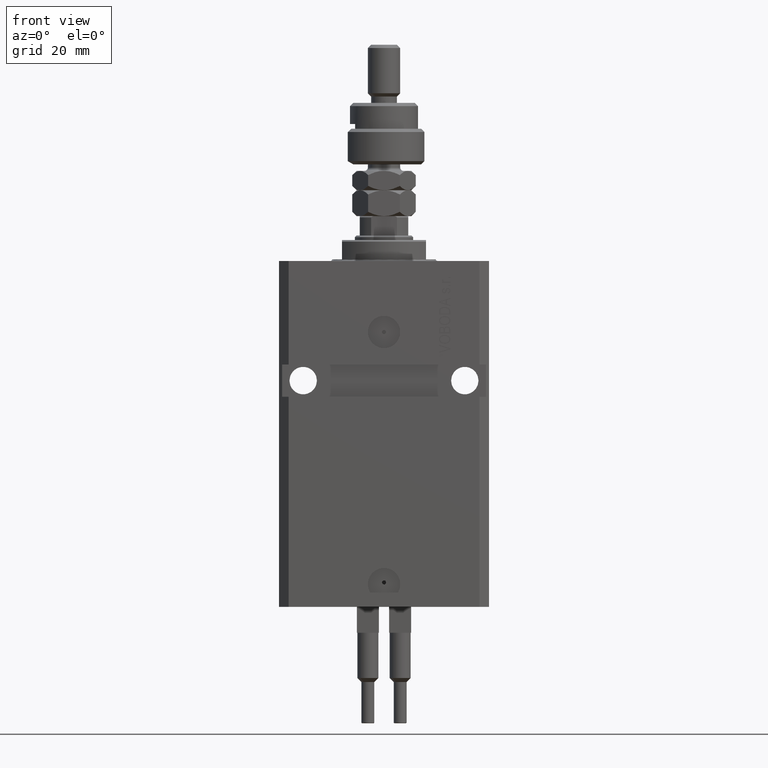
[diagram: clean part render]
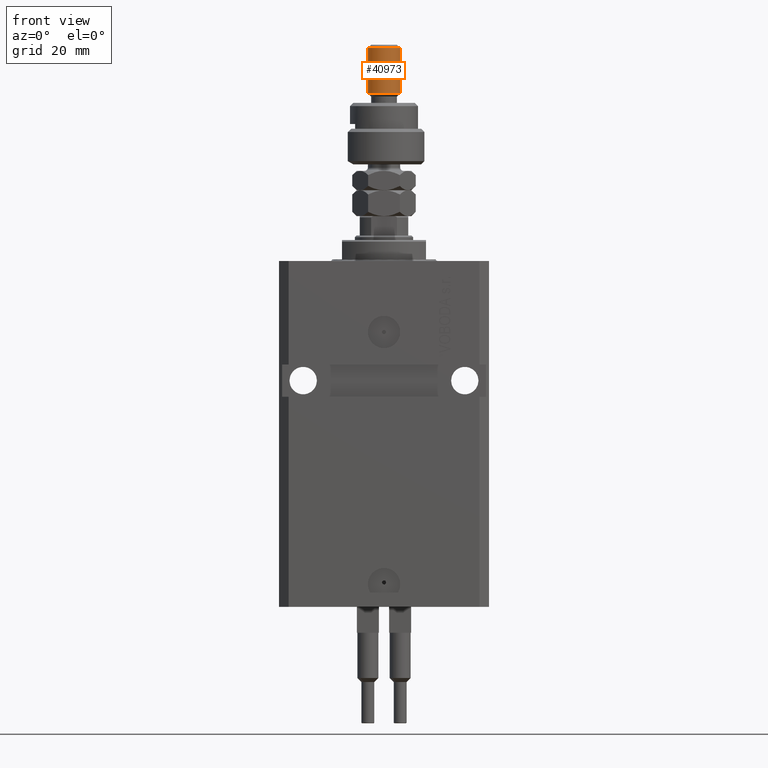
[diagram: same view with one face highlighted and labeled with its STEP entity id]
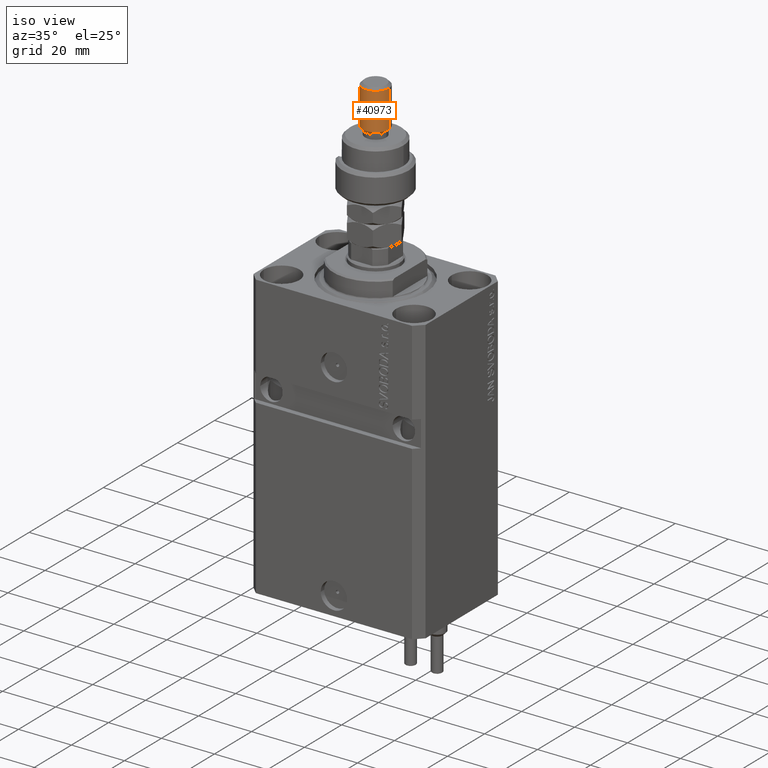
[diagram: same view with one face highlighted and labeled with its STEP entity id]
A machine part, front view. The second image highlights one B-rep face of the part: STEP entity #40973.
A second angle (iso view) of the same face is appended — the face is thin or edge-on in the first view.
In plain terms, the highlighted cylindrical surface (edge-blend (fillet) strip) has radius 5 mm, axis along (-0, -0, -1).
Its self-contained STEP definition (entity closure, byte-faithful):
#910 = AXIS2_PLACEMENT_3D ( 'NONE', #31035, #4340, #43387 ) ;
#1190 = ORIENTED_EDGE ( 'NONE', *, *, #7911, .T. ) ;
#1362 = VECTOR ( 'NONE', #2164, 1000.000000000000000 ) ;
#2164 = DIRECTION ( 'NONE',  ( -0.000000000000000000, -0.000000000000000000, -1.000000000000000000 ) ) ;
#2748 = CARTESIAN_POINT ( 'NONE',  ( 5.000000000000000888, 6.123233995736767268E-16, 36.00000000000000711 ) ) ;
#3967 = EDGE_CURVE ( 'NONE', #25389, #4154, #38803, .T. ) ;
#4154 = VERTEX_POINT ( 'NONE', #16913 ) ;
#4200 = CIRCLE ( 'NONE', #910, 5.000000000000000888 ) ;
#4340 = DIRECTION ( 'NONE',  ( -0.000000000000000000, -0.000000000000000000, 1.000000000000000000 ) ) ;
#4945 = CARTESIAN_POINT ( 'NONE',  ( -5.000000000000000888, 0.000000000000000000, 36.00000000000000711 ) ) ;
#5798 = VERTEX_POINT ( 'NONE', #2748 ) ;
#5976 = CYLINDRICAL_SURFACE ( 'NONE', #38936, 5.000000000000000888 ) ;
#7213 = DIRECTION ( 'NONE',  ( -0.000000000000000000, -0.000000000000000000, -1.000000000000000000 ) ) ;
#7911 = EDGE_CURVE ( 'NONE', #5798, #25389, #30260, .T. ) ;
#9104 = LINE ( 'NONE', #25020, #1362 ) ;
#9162 = CARTESIAN_POINT ( 'NONE',  ( 5.000000000000000888, 6.123233995736767268E-16, 21.99999999999999289 ) ) ;
#9826 = DIRECTION ( 'NONE',  ( -0.000000000000000000, -0.000000000000000000, -1.000000000000000000 ) ) ;
#12225 = EDGE_CURVE ( 'NONE', #4154, #28404, #4200, .T. ) ;
#12764 = ORIENTED_EDGE ( 'NONE', *, *, #12225, .T. ) ;
#15876 = EDGE_LOOP ( 'NONE', ( #16829, #1190, #16847, #12764 ) ) ;
#16829 = ORIENTED_EDGE ( 'NONE', *, *, #44391, .F. ) ;
#16847 = ORIENTED_EDGE ( 'NONE', *, *, #3967, .T. ) ;
#16913 = CARTESIAN_POINT ( 'NONE',  ( -5.000000000000000888, 0.000000000000000000, 21.99999999999999289 ) ) ;
#18276 = FACE_OUTER_BOUND ( 'NONE', #15876, .T. ) ;
#20364 = CARTESIAN_POINT ( 'NONE',  ( 0.000000000000000000, 0.000000000000000000, 36.00000000000000711 ) ) ;
#24728 = DIRECTION ( 'NONE',  ( 0.000000000000000000, 0.000000000000000000, -1.000000000000000000 ) ) ;
#25020 = CARTESIAN_POINT ( 'NONE',  ( 5.000000000000000888, 6.123233995736767268E-16, 37.00000000000000000 ) ) ;
#25389 = VERTEX_POINT ( 'NONE', #4945 ) ;
#28404 = VERTEX_POINT ( 'NONE', #9162 ) ;
#30103 = DIRECTION ( 'NONE',  ( -1.000000000000000000, 0.000000000000000000, 0.000000000000000000 ) ) ;
#30260 = CIRCLE ( 'NONE', #40951, 5.000000000000000888 ) ;
#31035 = CARTESIAN_POINT ( 'NONE',  ( 0.000000000000000000, 0.000000000000000000, 21.99999999999999289 ) ) ;
#31581 = CARTESIAN_POINT ( 'NONE',  ( -5.000000000000000888, 0.000000000000000000, 37.00000000000000000 ) ) ;
#32431 = DIRECTION ( 'NONE',  ( 1.000000000000000000, 0.000000000000000000, 0.000000000000000000 ) ) ;
#34227 = VECTOR ( 'NONE', #7213, 1000.000000000000000 ) ;
#37814 = CARTESIAN_POINT ( 'NONE',  ( 0.000000000000000000, 0.000000000000000000, 37.00000000000000000 ) ) ;
#38803 = LINE ( 'NONE', #31581, #34227 ) ;
#38936 = AXIS2_PLACEMENT_3D ( 'NONE', #37814, #9826, #30103 ) ;
#40951 = AXIS2_PLACEMENT_3D ( 'NONE', #20364, #24728, #32431 ) ;
#40973 = ADVANCED_FACE ( 'NONE', ( #18276 ), #5976, .T. ) ;
#43387 = DIRECTION ( 'NONE',  ( 1.000000000000000000, 0.000000000000000000, 0.000000000000000000 ) ) ;
#44391 = EDGE_CURVE ( 'NONE', #5798, #28404, #9104, .T. ) ;